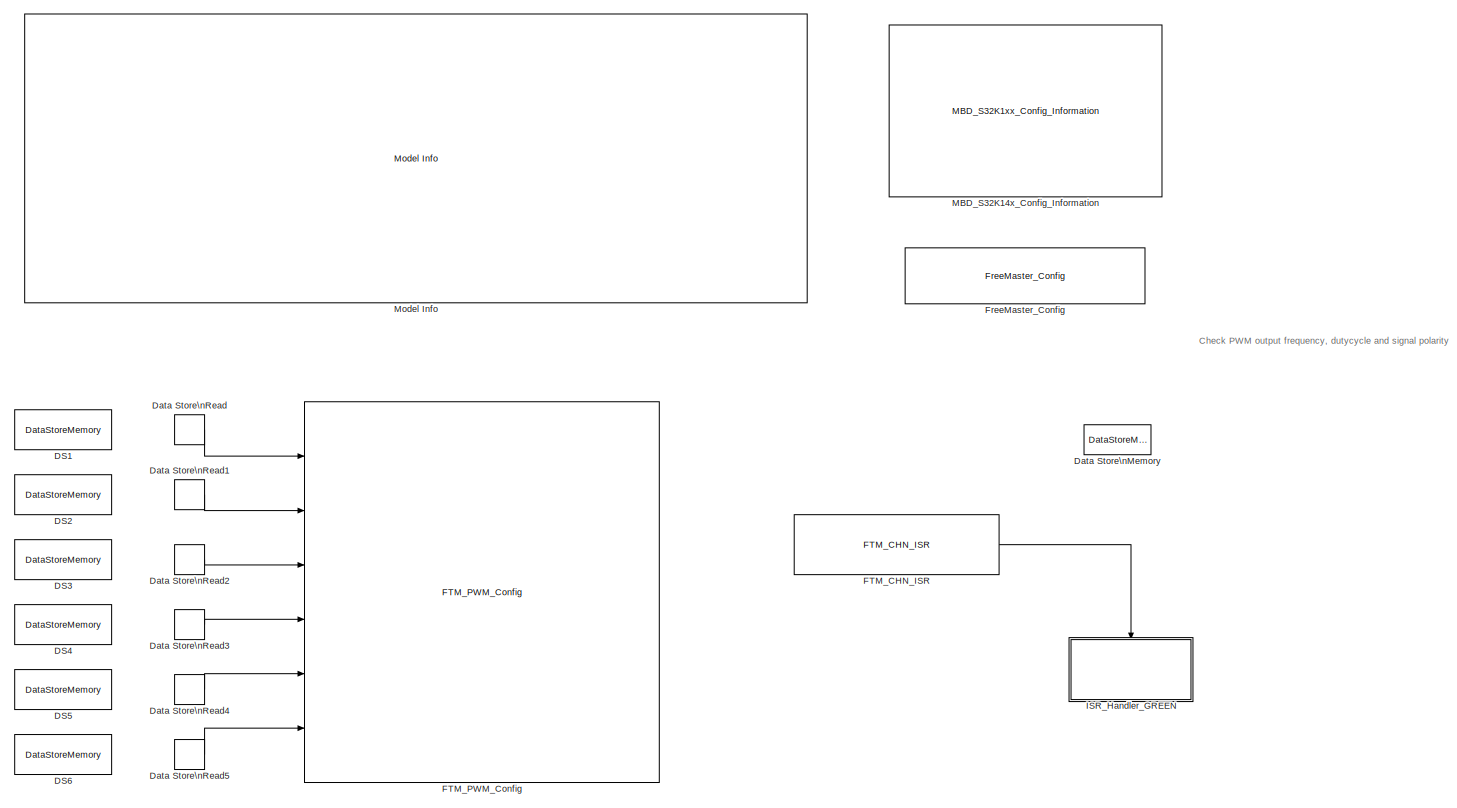
[diagram: root canvas - part 1/2, full width, top band]
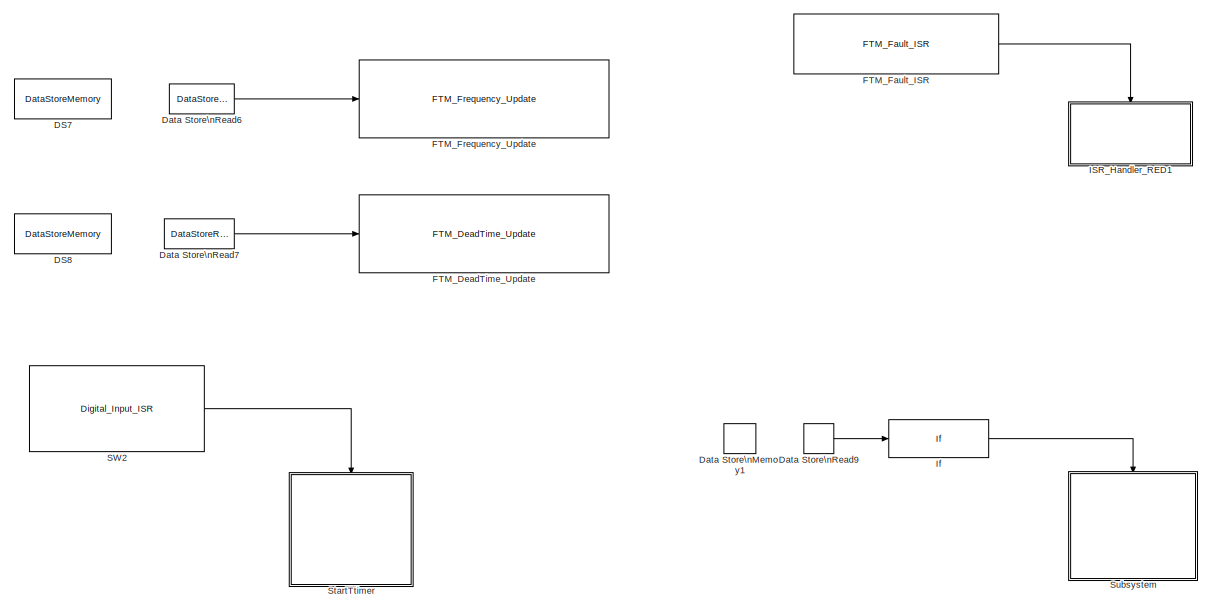
[diagram: root canvas - part 2/2, full width, bottom band]
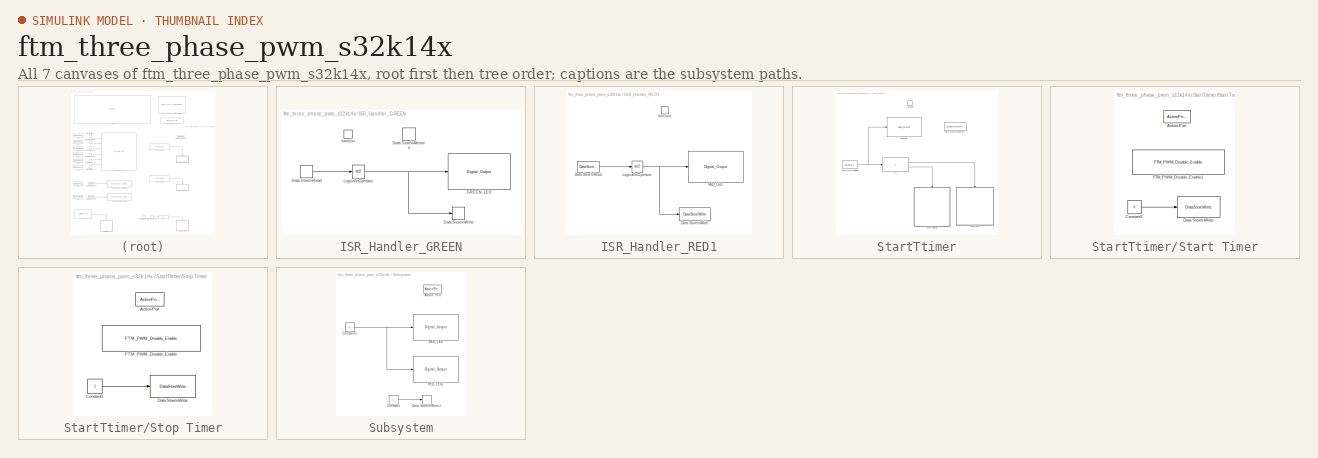
[diagram: thumbnail index - all 7 canvases of the model, root first then tree order]
MODEL ftm_three_phase_pwm_s32k14x
KIND model
CONFIG InitFcn = mbd_s32k_consistency_checks(bdroot(gcs));
BLOCK [DataStoreMemory] DS1
  DataStoreName = ch0_first_edge
  OutDataTypeStr = single
  ReadBeforeWriteMsg = warning
  SID = 180
  ShowAdditionalParam = off
  WriteAfterReadMsg = warning
  WriteAfterWriteMsg = warning
BLOCK [DataStoreMemory] DS2
  DataStoreName = ch0_second_edge
  InitialValue = 0.8
  OutDataTypeStr = single
  ReadBeforeWriteMsg = warning
  SID = 182
  ShowAdditionalParam = off
  WriteAfterReadMsg = warning
  WriteAfterWriteMsg = warning
BLOCK [DataStoreMemory] DS3
  DataStoreName = ch2_first_edge
  OutDataTypeStr = single
  ReadBeforeWriteMsg = warning
  SID = 184
  ShowAdditionalParam = off
  WriteAfterReadMsg = warning
  WriteAfterWriteMsg = warning
BLOCK [DataStoreMemory] DS4
  DataStoreName = ch2_second_edge
  InitialValue = 0.5
  OutDataTypeStr = single
  ReadBeforeWriteMsg = warning
  SID = 185
  ShowAdditionalParam = off
  WriteAfterReadMsg = warning
  WriteAfterWriteMsg = warning
BLOCK [DataStoreMemory] DS5
  DataStoreName = ch4_first_edge
  InitialValue = 0.5
  OutDataTypeStr = single
  ReadBeforeWriteMsg = warning
  SID = 186
  ShowAdditionalParam = off
  WriteAfterReadMsg = warning
  WriteAfterWriteMsg = warning
BLOCK [DataStoreMemory] DS6
  DataStoreName = ch4_second_edge
  InitialValue = 0.75
  OutDataTypeStr = single
  ReadBeforeWriteMsg = warning
  SID = 187
  ShowAdditionalParam = off
  WriteAfterReadMsg = warning
  WriteAfterWriteMsg = warning
BLOCK [DataStoreMemory] DS7
  DataStoreName = frequency
  InitialValue = 10000
  OutDataTypeStr = uint32
  ReadBeforeWriteMsg = warning
  SID = 205
  ShowAdditionalParam = off
  WriteAfterReadMsg = warning
  WriteAfterWriteMsg = warning
BLOCK [DataStoreMemory] DS8
  DataStoreName = deadtime
  InitialValue = 500
  OutDataTypeStr = uint32
  ReadBeforeWriteMsg = warning
  SID = 207
  ShowAdditionalParam = off
  WriteAfterReadMsg = warning
  WriteAfterWriteMsg = warning
BLOCK [DataStoreMemory] Data Store\nMemory
  DataStoreName = Fault_LED
  OutDataTypeStr = boolean
  ReadBeforeWriteMsg = warning
  SID = 228
  ShowAdditionalParam = off
  WriteAfterReadMsg = warning
  WriteAfterWriteMsg = warning
BLOCK [DataStoreMemory] Data Store\nMemory1
  DataStoreName = flag
  ReadBeforeWriteMsg = warning
  SID = 276
  ShowAdditionalParam = off
  WriteAfterReadMsg = warning
  WriteAfterWriteMsg = warning
BLOCK [DataStoreRead] Data Store\nRead
  DataStoreName = ch0_first_edge
  Ports = [0, 1]
  SID = 188
BLOCK [DataStoreRead] Data Store\nRead1
  DataStoreName = ch0_second_edge
  Ports = [0, 1]
  SID = 189
BLOCK [DataStoreRead] Data Store\nRead2
  DataStoreName = ch2_first_edge
  Ports = [0, 1]
  SID = 190
BLOCK [DataStoreRead] Data Store\nRead3
  DataStoreName = ch2_second_edge
  Ports = [0, 1]
  SID = 191
BLOCK [DataStoreRead] Data Store\nRead4
  DataStoreName = ch4_first_edge
  Ports = [0, 1]
  SID = 198
BLOCK [DataStoreRead] Data Store\nRead5
  DataStoreName = ch4_second_edge
  Ports = [0, 1]
  SID = 193
BLOCK [DataStoreRead] Data Store\nRead6
  DataStoreName = frequency
  Ports = [0, 1]
  SID = 206
BLOCK [DataStoreRead] Data Store\nRead7
  DataStoreName = deadtime
  Ports = [0, 1]
  SID = 208
BLOCK [DataStoreRead] Data Store\nRead9
  DataStoreName = flag
  Ports = [0, 1]
  SID = 277
BLOCK [Reference] FTM_CHN_ISR  REF=mbd_s32k1xx_ec_toolbox/Motor Control Blocks/FTM Blocks/FTM_CHN_ISR
  Ports = [0, 1]
  Priority = 10
  SID = 127
  SourceBlock = mbd_s32k1xx_ec_toolbox/Motor Control Blocks/FTM Blocks/FTM_CHN_ISR
  SourceType = FTM_s32k_chn_isr_block
  channel = 0
  ftmModule = 3
  isrlevel = 10
  mcuTargetUpdate = on
BLOCK [Reference] FTM_DeadTime_Update  REF=mbd_s32k1xx_ec_toolbox/Motor Control Blocks/FTM Blocks/FTM_DeadTime_Update
  Ports = [1]
  Priority = 1
  SID = 210
  SourceBlock = mbd_s32k1xx_ec_toolbox/Motor Control Blocks/FTM Blocks/FTM_DeadTime_Update
  SourceType = FTM_s32k_dead_time_update_block
  deadtimePrescaler = Divide by 1
  deadtimeUnits = Nanoseconds
  ftmModule = 3
  mcuTargetUpdate = on
BLOCK [Reference] FTM_Fault_ISR  REF=mbd_s32k1xx_ec_toolbox/Motor Control Blocks/FTM Blocks/FTM_Fault_ISR
  Ports = [0, 1]
  Priority = 10
  SID = 240
  SourceBlock = mbd_s32k1xx_ec_toolbox/Motor Control Blocks/FTM Blocks/FTM_Fault_ISR
  SourceType = FTM_s32k_fault_isr
  faultChannel = 0
  ftmModule = 3
  isrPriority = 15
  mcuTargetUpdate = on
BLOCK [Reference] FTM_Frequency_Update  REF=mbd_s32k1xx_ec_toolbox/Motor Control Blocks/FTM Blocks/FTM_Frequency_Update
  Ports = [1]
  Priority = 1
  SID = 113
  SourceBlock = mbd_s32k1xx_ec_toolbox/Motor Control Blocks/FTM Blocks/FTM_Frequency_Update
  SourceType = FTM_s32k_freq_update_block
  ftmModule = 3
  ftmPwmUnits = Hz
  mcuTargetUpdate = on
BLOCK [Reference] FTM_PWM_Config  REF=mbd_s32k1xx_ec_toolbox/Motor Control Blocks/FTM Blocks/FTM_PWM_Config
  Ports = [6]
  Priority = 1
  SID = 172
  SourceBlock = mbd_s32k1xx_ec_toolbox/Motor Control Blocks/FTM Blocks/FTM_PWM_Config
  SourceType = FTM_s32k_pwm_config_block
  chTrigger0 = on
  chTrigger1 = off
  chTrigger2 = off
  chTrigger3 = off
  chTrigger4 = off
  chTrigger5 = off
  chTrigger6 = off
  chTrigger7 = off
  chan0En = on
  chan0Type = Independent
  chan2En = on
  chan2Type = Independent
  chan4En = on
  chan4Type = Independent
  chan6En = off
  chan6Type = Independent
  chnMatch0 = off
  chnMatch1 = off
  chnMatch2 = off
  chnMatch3 = off
  chnMatch4 = off
  chnMatch5 = off
  chnMatch6 = off
  chnMatch7 = off
  deadtimeNs = 500
  deadtimePrescaler = Divide by 1
  deadtimeTicks = 40
  deadtimeUnits = Nanoseconds
  dutyCycleCh0 = 0.1
  dutyCycleCh1 = 0.25
  dutyCycleCh2 = 0
  dutyCycleCh3 = 0
  dutyCycleCh4 = 0
  dutyCycleCh5 = 0
  dutyCycleCh6 = 0.25
  dutyCycleCh7 = 0.25
  dutyCycleSim = off
  fault_disen_0 = on
  fault_disen_1 = off
  fault_disen_2 = off
  fault_disen_3 = off
  fault_filter_0 = off
  fault_filter_1 = off
  fault_filter_2 = off
  fault_filter_3 = off
  fault_pin_0 = None
  fault_pin_1 = None
  fault_pin_2 = None
  fault_pin_3 = None
  fault_polarity_0 = Active High
  fault_polarity_1 = Active high
  fault_polarity_2 = Active high
  fault_polarity_3 = Active high
  ftmMode = Combine mode PWM
  ftmModule = 3
  ftmPeriod = 8000
  ftmPrescaler = Divide by 1
  ftmPwmUnits = Hz
  ftmSourceClock = 80 MHz
  initTrigger = off
  mcuTargetUpdate = on
  outFrequency = 10000
  outputComplem0 = Main inverted
  outputComplem2 = Main inverted
  outputComplem4 = Main duplicated
  outputComplem6 = Main duplicated
  outputLevel0 = Low
  outputLevel1 = Low
  outputLevel2 = Low
  outputLevel3 = Low
  outputLevel4 = Low
  outputLevel5 = Low
  outputLevel6 = Low
  outputLevel7 = Low
  pinFtmCh0 = PTB8: [FTM3_CH0 | FTM Channel]
  pinFtmCh1 = PTB9: [FTM3_CH1 | FTM Channel]
  pinFtmCh2 = PTB10: [FTM3_CH2 | FTM Channel]
  pinFtmCh3 = PTB11: [FTM3_CH3 | FTM Channel]
  pinFtmCh4 = PTC10: [FTM3_CH4 | FTM Channel]
  pinFtmCh5 = PTC11: [FTM3_CH5 | FTM Channel]
  pinFtmCh6 = PTC12: [FTM3_CH6 | FTM Channel]
  pinFtmCh7 = None
  pinPolCh0 = Active High
  pinPolCh1 = Active Low
  pinPolCh2 = Active High
  pinPolCh3 = Active Low
  pinPolCh4 = Active High
  pinPolCh5 = Active Low
  pinPolCh6 = Active Low
  pinPolCh7 = Active Low
  pwmFaultClearing = Automatic Fault control for all channels
  pwmFaultFilterValue = 0
  pwmFaultInterrupt = on
  pwmFaultPinState = Safe Value
  pwmFaultPriority = 7
  pwmFaultProtection = on
  pwmSyncAutoClear = on
  pwmSyncCounterInitial = System Clock
  pwmSyncHwRouting = TRGMUX_FTM7
  pwmSyncInvert = System Clock
  pwmSyncMaxLoad = on
  pwmSyncMinLoad = on
  pwmSyncOutControl = System Clock
  pwmSyncOutMask = System Clock
  pwmSyncPoints = Update now
  pwmSyncTrg = Software trigger
  pwmSyncTrg0 = on
  pwmSyncTrg1 = on
  pwmSyncTrg2 = on
  reloadEnable = off
  reloadFrequency = 0
  reloadHCR = 0
  reloadHalfCycle = off
  reloadPriority = 0
  showAdvOpt = on
  startAfterInit = on
  swcontrol_enable = off
BLOCK [Reference] FreeMaster_Config  REF=mbd_s32k1xx_ec_toolbox/Utility Blocks/FreeMaster_Config
  Ports = []
  SID = 196
  SourceBlock = mbd_s32k1xx_ec_toolbox/Utility Blocks/FreeMaster_Config
  SourceType = fm_s32k_config
  baudrate = 115200
  comm_buffer_size = 255
  comm_buffer_size_auto = on
  comm_rqueue_size = 32
  comm_rqueue_size_default = on
  interface = LPUART1
  isr_prio = 10
  max_rec_vars = 8
  max_scope_vars = 8
  mode = Short Interrupt
  rec_buff_size = 1024
  rec_timebase = 0
  rec_timebase_unit = milliseconds
  rxd = PTC6: [LPUART1_RX | Receive]
  show_adv_opts = on
  txd = PTC7: [LPUART1_TX | Transmit]
  use_recorder = on
  use_scope = on
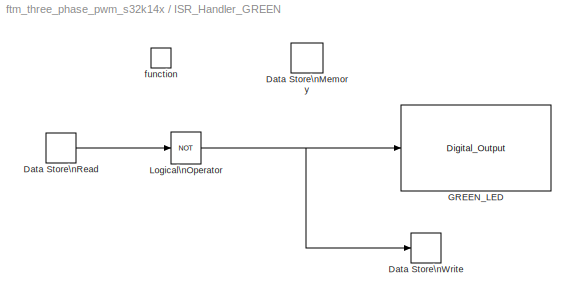
BLOCK [SubSystem] ISR_Handler_GREEN
  Ports = [0, 0, 0, 1]
  RequestExecContextInheritance = off
  SID = 128
  Variant = off
BLOCK [DataStoreMemory] ISR_Handler_GREEN/Data Store\nMemory
  OutDataTypeStr = boolean
  ReadBeforeWriteMsg = warning
  SID = 135
  ShowAdditionalParam = off
  WriteAfterReadMsg = warning
  WriteAfterWriteMsg = warning
BLOCK [DataStoreRead] ISR_Handler_GREEN/Data Store\nRead
  Ports = [0, 1]
  SID = 136
BLOCK [DataStoreWrite] ISR_Handler_GREEN/Data Store\nWrite
  Ports = [1]
  SID = 138
BLOCK [Reference] ISR_Handler_GREEN/GREEN_LED  REF=mbd_s32k1xx_ec_toolbox/GPIO Blocks/Digital_Output
  Ports = [1]
  SID = 126
  SourceBlock = mbd_s32k1xx_ec_toolbox/GPIO Blocks/Digital_Output
  SourceType = gpio_s32k_output
  drive_strength = High
  gpio_pin = PTD16: [PTD16 | Port D I/O]
  init_val = Low
BLOCK [Logic] ISR_Handler_GREEN/Logical\nOperator
  AllPortsSameDT = off
  Operator = NOT
  OutDataTypeStr = boolean
  Ports = [1, 1]
  SID = 137
BLOCK [TriggerPort] ISR_Handler_GREEN/function
  Ports = []
  SID = 133
  StatesWhenEnabling = held
  TriggerType = function-call
  VariantControl = Variant
BLOCK [SubSystem] ISR_Handler_RED1
  Ports = [0, 0, 0, 1]
  RequestExecContextInheritance = off
  SID = 226
  Variant = off
BLOCK [DataStoreRead] ISR_Handler_RED1/Data Store\nRead
  DataStoreName = Fault_LED
  Ports = [0, 1]
  SID = 242
BLOCK [DataStoreWrite] ISR_Handler_RED1/Data Store\nWrite
  DataStoreName = Fault_LED
  Ports = [1]
  SID = 243
BLOCK [Logic] ISR_Handler_RED1/Logical\nOperator
  AllPortsSameDT = off
  Operator = NOT
  OutDataTypeStr = boolean
  Ports = [1, 1]
  SID = 231
BLOCK [Reference] ISR_Handler_RED1/RED_LED  REF=mbd_s32k1xx_ec_toolbox/GPIO Blocks/Digital_Output
  Ports = [1]
  SID = 232
  SourceBlock = mbd_s32k1xx_ec_toolbox/GPIO Blocks/Digital_Output
  SourceType = gpio_s32k_output
  drive_strength = High
  gpio_pin = PTD15: [PTD15 | Port D I/O]
  init_val = Low
BLOCK [TriggerPort] ISR_Handler_RED1/function
  Ports = []
  SID = 227
  StatesWhenEnabling = held
  TriggerType = function-call
  VariantControl = Variant
BLOCK [If] If
  IfExpression = u1  == 0
  Ports = [1, 1]
  SID = 278
  ShowElse = off
BLOCK [Reference] MBD_S32K14x_Config_Information  REF=mbd_s32k1xx_ec_toolbox/MBD_S32K1xx_Config_Information
  ADC_PcrCheckEnDis = on
  AMMCLIB_PcrCheckEnDis = on
  CMP_PcrCheckEnDis = on
  CSEc_PcrCheckEnDis = on
  ConfigParams_PcrCheckEnDis = on
  FM_PcrCheckEnDis = on
  FTM_Dual_Edge_Inputs_PcrCheckEnDis = on
  FTM_Hall_Sensor_Inputs_PcrCheckEnDis = on
  FTM_Input_Edge_Inputs_PcrCheckEnDis = on
  FTM_PWM_PcrCheckEnDis = on
  FTM_Quadrature_Inputs_PcrCheckEnDis = on
  FlexCAN_PcrCheckEnDis = on
  FlexIO_PcrCheckEnDis = on
  GPIO_InputPcrCheckEnDis = on
  GPIO_OutputPcrCheckEnDis = on
  LIN_PcrCheckEnDis = on
  LPI2C_PcrCheckEnDis = on
  LPSPI_PcrCheckEnDis = on
  LPTMR_PcrCheckEnDis = on
  LPUART_PcrCheckEnDis = on
  ModelRef_PcrCheckEnDis = on
  PDB0_PcrCheckEnDis = on
  PIT_PcrCheckEnDis = on
  Ports = []
  Profile_PcrCheckEnDis = on
  RTC_PcrCheckEnDis = on
  SBC_PcrCheckEnDis = on
  SID = 1
  SourceBlock = mbd_s32k1xx_ec_toolbox/MBD_S32K1xx_Config_Information
  SourceType = MBDTBX_EC_S32K
  WDOG_PcrCheckEnDis = on
  config_params = []
  disp_str = Target : S32K142-16KB_SRAM\nPackage : 100-pin\nSystem clock : 80 MHz\nXTAL clock : External 8 MHz\nCompiler : GCC\nTarget Type : FLASH\nDownload Code after build : (OpenSDA: D)\nStep Tick Interrupt Priority : 15
  ds_import_enable = on
  eDMA_PcrCheckEnDis = on
  gcc_target_assemble_opts = -mcpu=cortex-m4 -mthumb -mfloat-abi=hard -mfpu=fpv4-sp-d16 -g
  gcc_target_compile_opts = -mcpu=cortex-m4 -mthumb -mfloat-abi=hard -mfpu=fpv4-sp-d16 -O1 -g -gstrict-dwarf
  gcc_target_default_lcf = on
  gcc_target_link_opts = -mcpu=cortex-m4 -mthumb -mfloat-abi=hard -mfpu=fpv4-sp-d16
  gcc_target_user_lcf = S32K144_48_flash.ld
  ghs_target_assemble_opts = -cpu=cortexm4f -fpu=vfpv4_d16
  ghs_target_compile_opts = -cpu=cortexm4f -thumb -DARM_MATH_CM4 -fpu=vfpv4_d16 -fsingle -Ogeneral -Wundef -Wimplicit-int -Wshadow -Wtrigraphs --no_commons --gnu_asm -gnu99 -gdwarf-2 -G
  ghs_target_default_lcf = off
  ghs_target_link_opts = -cpu=cortexm4f -thumb -fpu=vfpv4_d16
  ghs_target_user_lcf = S32K144_48_flash.ld
  iar_target_assemble_opts = --cpu Cortex-M4F --thumb --fpu VFPv4_sp
  iar_target_compile_opts = --cpu=Cortex-M4F --thumb --fpu=VFPv4_sp -Ol -e --debug --dlib_config normal
  iar_target_default_lcf = off
  iar_target_link_opts = --no_exceptions --vfe --inline
  iar_target_user_lcf = S32K144_48_flash.icf
  mbdt_ver = 0
  mcu_steptick_prio = 15
  mcu_steptick_timer = LPIT Channel 0
  mcu_system_clock_freq = 80
  mcu_target_name = S32K144
  mcu_target_package = 64-LQFP
  mcu_target_sram_size = 48KB
  mcu_xtal_freq = External 8
  pil_download_enable = off
  pil_download_rate = 57600
  pil_opensda_drive = Custom
  pil_opensda_drive_custom = E
  pil_uart_instance = 0
  pil_uart_rx = PTA2: [LPUART0_RX | Receive]
  pil_uart_tx = PTA3: [LPUART0_TX | Transmit]
  rbl_com_port = Custom
  rbl_com_port_custom = COM1
  rbl_download_enable = on
  rbl_download_interface = OpenSDA
  rbl_restart_request = off
  rbl_start_delay = 5000000
  target_compiler = GreenHills Multi
  target_memory = FLASH
BLOCK [Reference] Model Info  REF=simulink/Model-Wide\nUtilities/Model Info
  DisplayStringWithTags = Model Name: %<ModelName>\n\nDescription: %<Description>
  Frame = off
  HorizontalTextAlignment = Left
  LeftAlignmentValue = 0.02
  MaskDisplayString = Model Name: ftm_three_phase_pwm_s32k14x\\n\\nDescription: This sample shows how to use FTM modules to generate PWM signals for the S32K144 MCUs three phase PWM. \\nThe model generates  PWM in the Combine mode on Ch0/Ch1, Ch2/Ch3 and Ch4/Ch5 outputs of the FTM3 module, \\na channel interrupt on Ch0 and a fault interrupt when the active state of the pin PA17 is High. The PWM also can be\\nenabled an...<+1260ch>
  Ports = []
  SID = 120
  SourceBlock = simulink/Model-Wide\nUtilities/Model Info
  SourceProductBaseCode = SL
  SourceProductName = Simulink
  SourceType = CMBlock
BLOCK [Reference] SW2  REF=mbd_s32k1xx_ec_toolbox/GPIO Blocks/Digital_Input_ISR
  Ports = [0, 1]
  SID = 244
  SourceBlock = mbd_s32k1xx_ec_toolbox/GPIO Blocks/Digital_Input_ISR
  SourceType = gpi_s32k_isr
  gpio_pin = PTC12: [PTC12 | Port C I/O]
  irqc = on rising-edge
  prio = 9
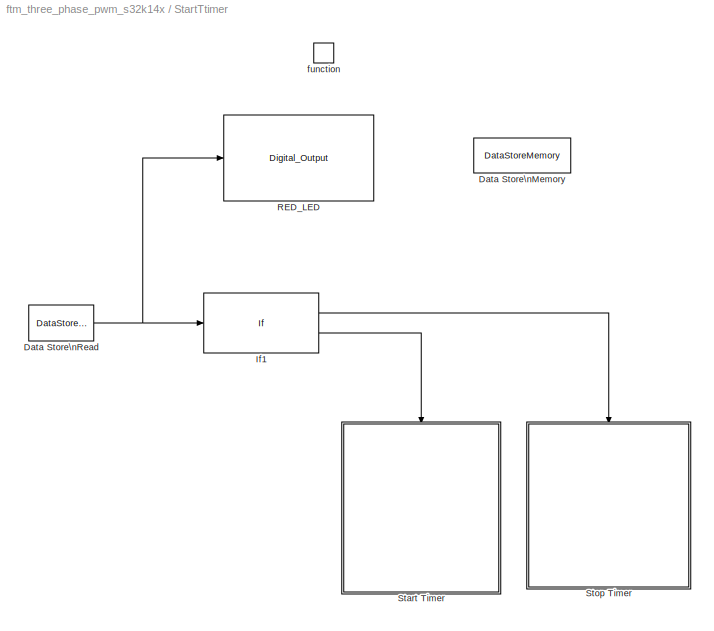
BLOCK [SubSystem] StartTtimer
  Ports = [0, 0, 0, 1]
  RequestExecContextInheritance = off
  SID = 156
  Variant = off
BLOCK [DataStoreMemory] StartTtimer/Data Store\nMemory
  DataStoreName = PWMEnable
  OutDataTypeStr = boolean
  ReadBeforeWriteMsg = warning
  SID = 251
  ShowAdditionalParam = off
  WriteAfterReadMsg = warning
  WriteAfterWriteMsg = warning
BLOCK [DataStoreRead] StartTtimer/Data Store\nRead
  DataStoreName = PWMEnable
  Ports = [0, 1]
  SID = 252
BLOCK [If] StartTtimer/If1
  IfExpression = u1 == 0
  Ports = [1, 2]
  SID = 245
BLOCK [Reference] StartTtimer/RED_LED  REF=mbd_s32k1xx_ec_toolbox/GPIO Blocks/Digital_Output
  Ports = [1]
  SID = 160
  SourceBlock = mbd_s32k1xx_ec_toolbox/GPIO Blocks/Digital_Output
  SourceType = gpio_s32k_output
  drive_strength = High
  gpio_pin = PTD0: [PTD0 | Port D I/O]
  init_val = Low
BLOCK [SubSystem] StartTtimer/Start Timer
  Ports = [0, 0, 0, 0, 0, 0, 0, 1]
  RequestExecContextInheritance = off
  SID = 246
  Variant = off
BLOCK [ActionPort] StartTtimer/Start Timer/Action Port
  SID = 247
BLOCK [Constant] StartTtimer/Start Timer/Constant1
  OutDataTypeStr = boolean
  SID = 261
  Value = 0
BLOCK [DataStoreWrite] StartTtimer/Start Timer/Data Store\nWrite
  DataStoreName = PWMEnable
  Ports = [1]
  SID = 262
BLOCK [Reference] StartTtimer/Start Timer/FTM_PWM_Disable_Enable1  REF=mbd_s32k1xx_ec_toolbox/Motor Control Blocks/FTM Blocks/FTM_PWM_Disable_Enable
  Ports = []
  Priority = 1
  SID = 263
  SourceBlock = mbd_s32k1xx_ec_toolbox/Motor Control Blocks/FTM Blocks/FTM_PWM_Disable_Enable
  SourceType = FTM_s32k_pwm_disen
  action = Enable
  ftmModule = 3
BLOCK [SubSystem] StartTtimer/Stop Timer
  Ports = [0, 0, 0, 0, 0, 0, 0, 1]
  RequestExecContextInheritance = off
  SID = 253
  Variant = off
BLOCK [ActionPort] StartTtimer/Stop Timer/Action Port
  SID = 254
BLOCK [Constant] StartTtimer/Stop Timer/Constant1
  OutDataTypeStr = boolean
  SID = 260
BLOCK [DataStoreWrite] StartTtimer/Stop Timer/Data Store\nWrite
  DataStoreName = PWMEnable
  Ports = [1]
  SID = 258
BLOCK [Reference] StartTtimer/Stop Timer/FTM_PWM_Disable_Enable  REF=mbd_s32k1xx_ec_toolbox/Motor Control Blocks/FTM Blocks/FTM_PWM_Disable_Enable
  Ports = []
  Priority = 1
  SID = 256
  SourceBlock = mbd_s32k1xx_ec_toolbox/Motor Control Blocks/FTM Blocks/FTM_PWM_Disable_Enable
  SourceType = FTM_s32k_pwm_disen
  action = Disable
  ftmModule = 3
BLOCK [TriggerPort] StartTtimer/function
  Ports = []
  SID = 269
  StatesWhenEnabling = held
  TriggerType = function-call
  VariantControl = Variant
BLOCK [SubSystem] Subsystem
  Ports = [0, 0, 0, 0, 0, 0, 0, 1]
  RequestExecContextInheritance = off
  SID = 279
  Variant = off
BLOCK [ActionPort] Subsystem/Action Port
  SID = 286
BLOCK [Constant] Subsystem/Constant
  SID = 282
  Value = 0
BLOCK [Constant] Subsystem/Constant1
  OutDataTypeStr = boolean
  SID = 283
BLOCK [DataStoreWrite] Subsystem/Data Store\nWrite1
  DataStoreName = flag
  Ports = [1]
  SID = 281
BLOCK [Reference] Subsystem/RED_LED  REF=mbd_s32k1xx_ec_toolbox/GPIO Blocks/Digital_Output
  Ports = [1]
  SID = 275
  SourceBlock = mbd_s32k1xx_ec_toolbox/GPIO Blocks/Digital_Output
  SourceType = gpio_s32k_output
  drive_strength = High
  gpio_pin = PTD15: [PTD15 | Port D I/O]
  init_val = Low
BLOCK [Reference] Subsystem/RED_LED1  REF=mbd_s32k1xx_ec_toolbox/GPIO Blocks/Digital_Output
  Ports = [1]
  SID = 280
  SourceBlock = mbd_s32k1xx_ec_toolbox/GPIO Blocks/Digital_Output
  SourceType = gpio_s32k_output
  drive_strength = High
  gpio_pin = PTD0: [PTD0 | Port D I/O]
  init_val = Low
ANNOTATION (root): \n \n Check PWM output frequency, dutycycle and signal polarity \n \n \n Check the deadband insertion delay between paired channels \n
LINE Data Store\nRead1:1 -> FTM_PWM_Config:2
LINE Data Store\nRead2:1 -> FTM_PWM_Config:3
LINE Data Store\nRead3:1 -> FTM_PWM_Config:4
LINE Data Store\nRead4:1 -> FTM_PWM_Config:5
LINE Data Store\nRead5:1 -> FTM_PWM_Config:6
LINE Data Store\nRead6:1 -> FTM_Frequency_Update:1
LINE Data Store\nRead7:1 -> FTM_DeadTime_Update:1
LINE Data Store\nRead9:1 -> If:1
LINE Data Store\nRead:1 -> FTM_PWM_Config:1
LINE FTM_CHN_ISR:1 -> ISR_Handler_GREEN:trigger
LINE FTM_Fault_ISR:1 -> ISR_Handler_RED1:trigger
LINE ISR_Handler_GREEN/Data Store\nRead:1 -> ISR_Handler_GREEN/Logical\nOperator:1
NET ISR_Handler_GREEN/Logical\nOperator:1 -> ISR_Handler_GREEN/Data Store\nWrite:1, ISR_Handler_GREEN/GREEN_LED:1
LINE ISR_Handler_RED1/Data Store\nRead:1 -> ISR_Handler_RED1/Logical\nOperator:1
NET ISR_Handler_RED1/Logical\nOperator:1 -> ISR_Handler_RED1/Data Store\nWrite:1, ISR_Handler_RED1/RED_LED:1
LINE If:1 -> Subsystem:ifaction
LINE SW2:1 -> StartTtimer:trigger
NET StartTtimer/Data Store\nRead:1 -> StartTtimer/If1:1, StartTtimer/RED_LED:1
LINE StartTtimer/If1:1 -> StartTtimer/Stop Timer:ifaction
LINE StartTtimer/If1:2 -> StartTtimer/Start Timer:ifaction
LINE StartTtimer/Start Timer/Constant1:1 -> StartTtimer/Start Timer/Data Store\nWrite:1
LINE StartTtimer/Stop Timer/Constant1:1 -> StartTtimer/Stop Timer/Data Store\nWrite:1
NET Subsystem/Constant1:1 -> Subsystem/RED_LED1:1, Subsystem/RED_LED:1
LINE Subsystem/Constant:1 -> Subsystem/Data Store\nWrite1:1
note: NET lines group one-source signal fan-out (src -> all destinations, sorted); 1:1 wires keep LINE
